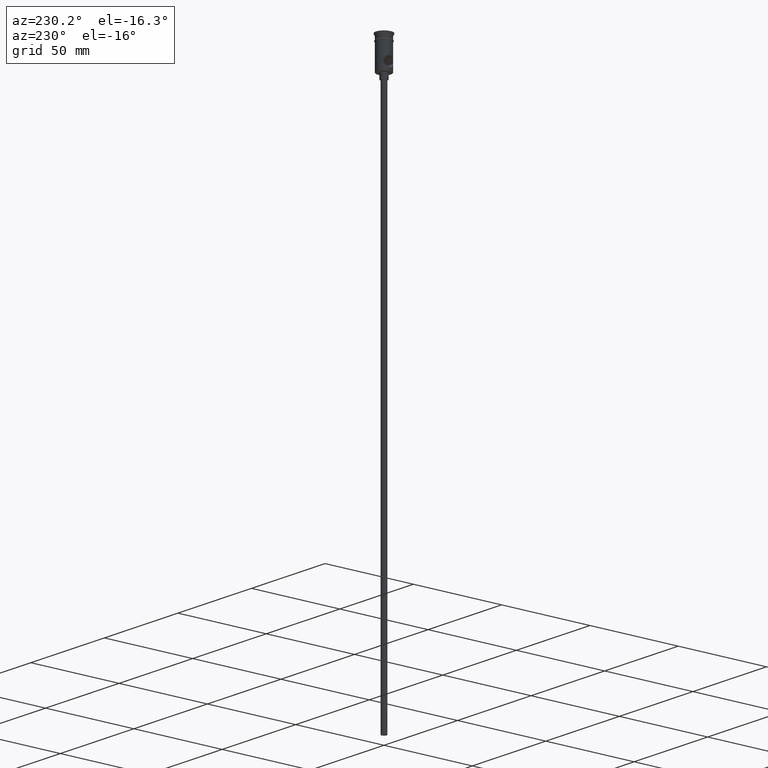
[diagram: clean part render]
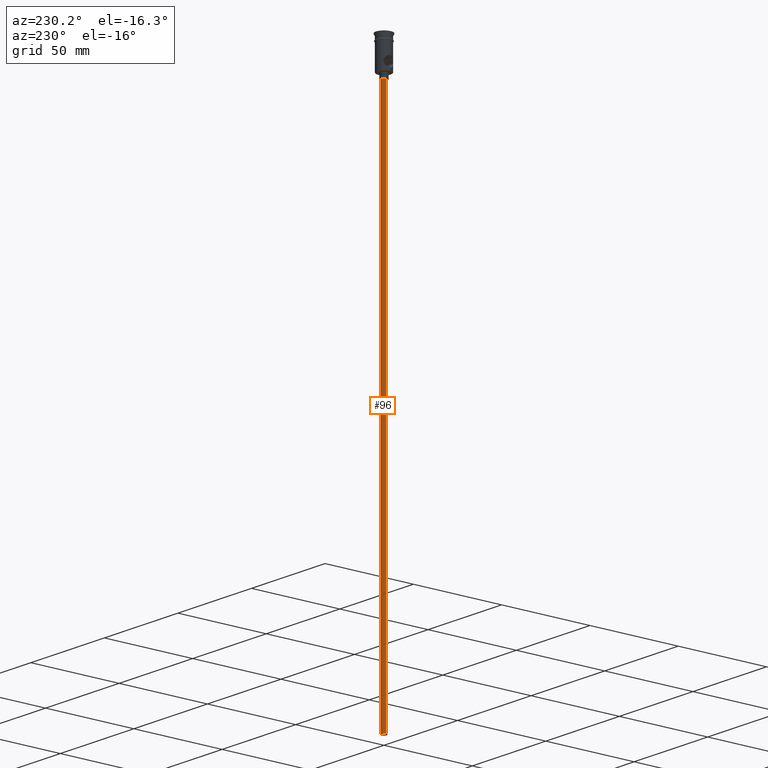
[diagram: same view with one face highlighted and labeled with its STEP entity id]
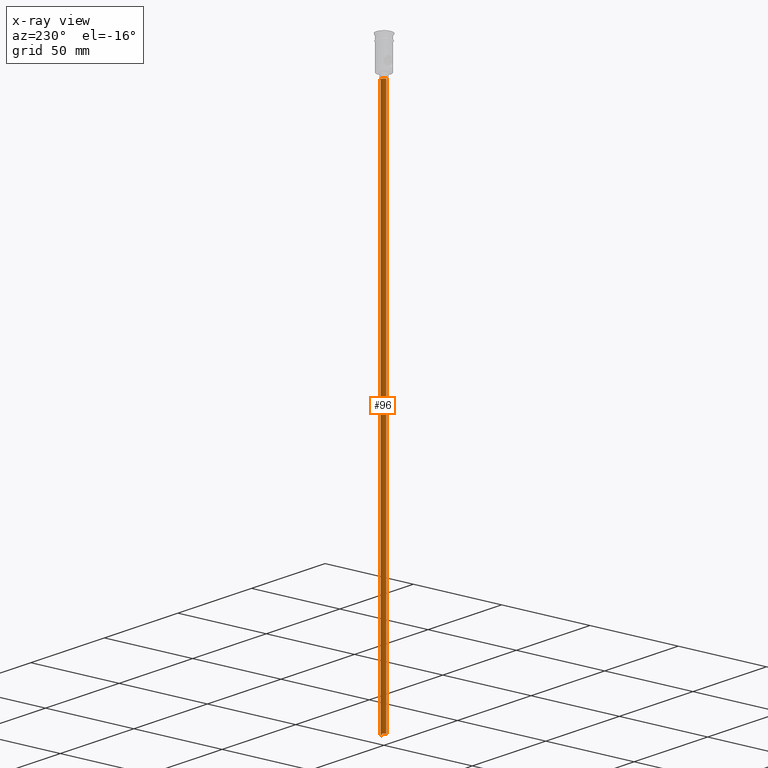
[diagram: x-ray of the same camera — body ghosted, the highlighted face saturated]
A machine part, auxiliary view. The second image highlights one B-rep face of the part: STEP entity #96.
The next image is the same camera in x-ray: the body ghosted, the highlighted face saturated — about 0% of this face is hidden behind the body in this view.
In plain terms, the highlighted cylindrical surface (edge-blend (fillet) strip) has radius 1.5 mm, axis along (-0, -0, 1).
Its self-contained STEP definition (entity closure, byte-faithful):
#17 = CARTESIAN_POINT ( 'NONE',  ( 0.000000000000000000, 0.000000000000000000, -318.0000000000000000 ) ) ;
#19 = EDGE_CURVE ( 'NONE', #932, #1205, #770, .T. ) ;
#48 = VERTEX_POINT ( 'NONE', #581 ) ;
#96 = ADVANCED_FACE ( 'NONE', ( #603 ), #619, .T. ) ;
#106 = LINE ( 'NONE', #741, #428 ) ;
#120 = DIRECTION ( 'NONE',  ( 0.000000000000000000, 0.000000000000000000, -1.000000000000000000 ) ) ;
#138 = CARTESIAN_POINT ( 'NONE',  ( 1.500000000000000222, 0.000000000000000000, -318.0000000000000000 ) ) ;
#192 = CARTESIAN_POINT ( 'NONE',  ( -1.500000000000000222, 1.836970198721030181E-16, -318.0000000000000000 ) ) ;
#232 = ORIENTED_EDGE ( 'NONE', *, *, #660, .T. ) ;
#247 = VERTEX_POINT ( 'NONE', #1196 ) ;
#282 = EDGE_LOOP ( 'NONE', ( #912, #540, #232, #1072 ) ) ;
#287 = DIRECTION ( 'NONE',  ( -0.000000000000000000, -0.000000000000000000, 1.000000000000000000 ) ) ;
#292 = CIRCLE ( 'NONE', #448, 1.500000000000000222 ) ;
#325 = CARTESIAN_POINT ( 'NONE',  ( 0.000000000000000000, 0.000000000000000000, -20.99999999999999645 ) ) ;
#374 = AXIS2_PLACEMENT_3D ( 'NONE', #17, #120, #681 ) ;
#427 = DIRECTION ( 'NONE',  ( -0.000000000000000000, -0.000000000000000000, 1.000000000000000000 ) ) ;
#428 = VECTOR ( 'NONE', #427, 1000.000000000000000 ) ;
#448 = AXIS2_PLACEMENT_3D ( 'NONE', #325, #1116, #1000 ) ;
#528 = EDGE_CURVE ( 'NONE', #932, #48, #106, .T. ) ;
#540 = ORIENTED_EDGE ( 'NONE', *, *, #528, .T. ) ;
#581 = CARTESIAN_POINT ( 'NONE',  ( -1.500000000000000222, 1.836970198721030181E-16, -20.99999999999999645 ) ) ;
#603 = FACE_OUTER_BOUND ( 'NONE', #282, .T. ) ;
#619 = CYLINDRICAL_SURFACE ( 'NONE', #936, 1.500000000000000222 ) ;
#635 = CARTESIAN_POINT ( 'NONE',  ( 1.500000000000000222, 0.000000000000000000, -318.0000000000000000 ) ) ;
#660 = EDGE_CURVE ( 'NONE', #48, #247, #292, .T. ) ;
#681 = DIRECTION ( 'NONE',  ( -1.000000000000000000, 0.000000000000000000, 0.000000000000000000 ) ) ;
#711 = EDGE_CURVE ( 'NONE', #1205, #247, #1212, .T. ) ;
#712 = DIRECTION ( 'NONE',  ( 1.000000000000000000, 0.000000000000000000, 0.000000000000000000 ) ) ;
#741 = CARTESIAN_POINT ( 'NONE',  ( -1.500000000000000222, 1.836970198721030181E-16, -318.0000000000000000 ) ) ;
#770 = CIRCLE ( 'NONE', #374, 1.500000000000000222 ) ;
#804 = CARTESIAN_POINT ( 'NONE',  ( 0.000000000000000000, 0.000000000000000000, -318.0000000000000000 ) ) ;
#912 = ORIENTED_EDGE ( 'NONE', *, *, #19, .F. ) ;
#932 = VERTEX_POINT ( 'NONE', #192 ) ;
#936 = AXIS2_PLACEMENT_3D ( 'NONE', #804, #287, #712 ) ;
#1000 = DIRECTION ( 'NONE',  ( -1.000000000000000000, 0.000000000000000000, 0.000000000000000000 ) ) ;
#1015 = DIRECTION ( 'NONE',  ( -0.000000000000000000, -0.000000000000000000, 1.000000000000000000 ) ) ;
#1072 = ORIENTED_EDGE ( 'NONE', *, *, #711, .F. ) ;
#1101 = VECTOR ( 'NONE', #1015, 1000.000000000000000 ) ;
#1116 = DIRECTION ( 'NONE',  ( 0.000000000000000000, 0.000000000000000000, -1.000000000000000000 ) ) ;
#1196 = CARTESIAN_POINT ( 'NONE',  ( 1.500000000000000222, 0.000000000000000000, -20.99999999999999645 ) ) ;
#1205 = VERTEX_POINT ( 'NONE', #635 ) ;
#1212 = LINE ( 'NONE', #138, #1101 ) ;